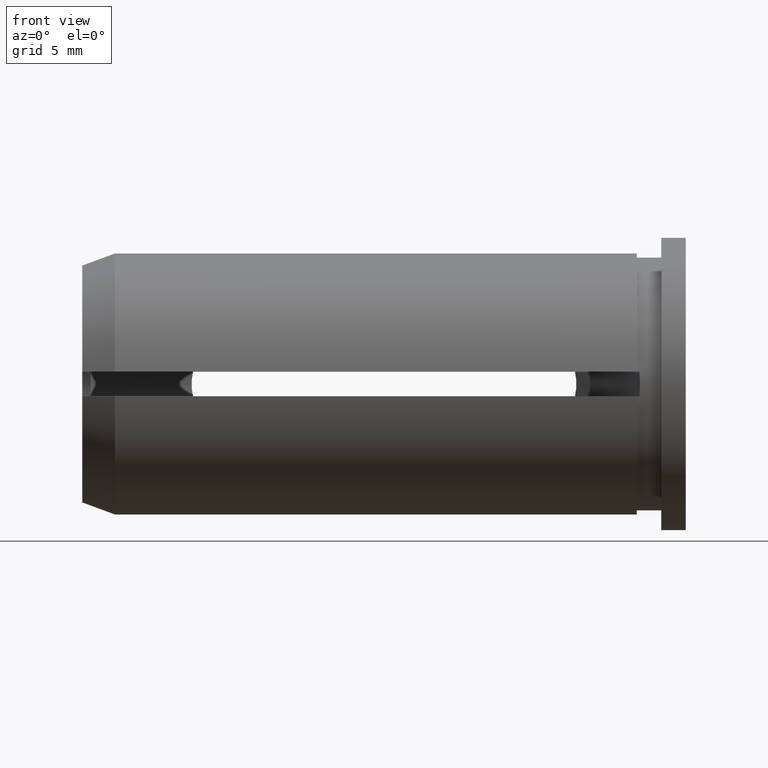
[diagram: clean part render]
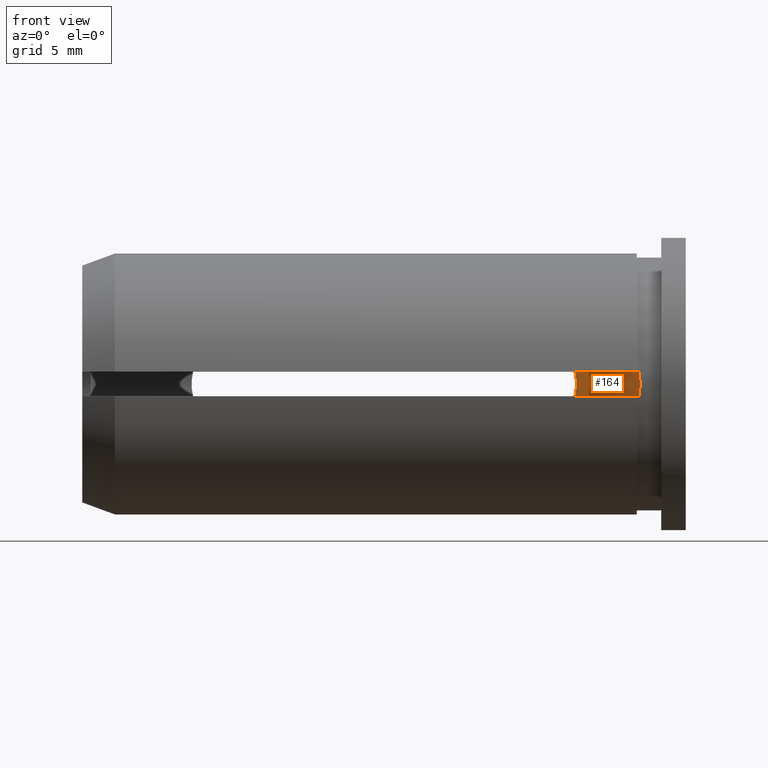
[diagram: same view with one face highlighted and labeled with its STEP entity id]
A machine part, front view. The second image highlights one B-rep face of the part: STEP entity #164.
In plain terms, the highlighted cylindrical surface (partial cylindrical patch) has radius 31.5 mm, axis along (-0, -0, 1).
Its self-contained STEP definition (entity closure, byte-faithful):
#16 = CARTESIAN_POINT ( 'NONE',  ( -2.831950108100726100, -7.713624310270756000, -0.7500000000000000000 ) ) ;
#25 = CARTESIAN_POINT ( 'NONE',  ( -2.831950108100726100, -7.713624310270756000, 0.7500000000000000000 ) ) ;
#39 = CARTESIAN_POINT ( 'NONE',  ( -6.701176655096183800, -3.999865424803159500, -0.2562650930468137700 ) ) ;
#40 = AXIS2_PLACEMENT_3D ( 'NONE', #60, #246, #297 ) ;
#42 = CARTESIAN_POINT ( 'NONE',  ( -6.730935861621550700, -3.975733101721137300, -0.5054832203984677100 ) ) ;
#43 = ORIENTED_EDGE ( 'NONE', *, *, #184, .F. ) ;
#53 = AXIS2_PLACEMENT_3D ( 'NONE', #460, #511, #66 ) ;
#60 = CARTESIAN_POINT ( 'NONE',  ( -26.49999999999999600, -28.50000000000000000, 0.7500000000000000000 ) ) ;
#66 = DIRECTION ( 'NONE',  ( -1.000000000000000000, 0.0000000000000000000, 0.0000000000000000000 ) ) ;
#71 = CYLINDRICAL_SURFACE ( 'NONE', #283, 31.50000000000000000 ) ;
#115 = FACE_OUTER_BOUND ( 'NONE', #515, .T. ) ;
#119 = CIRCLE ( 'NONE', #40, 31.50000000000000000 ) ;
#145 = CARTESIAN_POINT ( 'NONE',  ( -6.789119008821558100, -3.929058411375429200, 0.7500000000000000000 ) ) ;
#164 = ADVANCED_FACE ( 'NONE', ( #115 ), #71, .F. ) ;
#166 = CARTESIAN_POINT ( 'NONE',  ( -2.789253922157725700, -7.762239589537167600, -0.2500000000000003300 ) ) ;
#172 = CARTESIAN_POINT ( 'NONE',  ( -2.789253922157725300, -7.762239589537167600, 0.2500000000000000000 ) ) ;
#184 = EDGE_CURVE ( 'NONE', #472, #444, #195, .T. ) ;
#188 = CARTESIAN_POINT ( 'NONE',  ( -2.831950108100726100, -7.713624310270756000, 0.7500000000000000000 ) ) ;
#191 = VERTEX_POINT ( 'NONE', #257 ) ;
#195 = CIRCLE ( 'NONE', #53, 31.50000000000000000 ) ;
#209 = DIRECTION ( 'NONE',  ( 1.000000000000000000, 0.0000000000000000000, 0.0000000000000000000 ) ) ;
#240 = CARTESIAN_POINT ( 'NONE',  ( -6.700844974766410700, -4.000133462971036600, 0.2520466085258714100 ) ) ;
#246 = DIRECTION ( 'NONE',  ( 0.0000000000000000000, 0.0000000000000000000, 1.000000000000000000 ) ) ;
#257 = CARTESIAN_POINT ( 'NONE',  ( -6.789119008821558100, -3.929058411375429200, 0.7500000000000000000 ) ) ;
#278 = EDGE_CURVE ( 'NONE', #501, #472, #572, .T. ) ;
#283 = AXIS2_PLACEMENT_3D ( 'NONE', #306, #613, #209 ) ;
#284 = CARTESIAN_POINT ( 'NONE',  ( -6.789119008821558100, -3.929058411375429200, -0.7500000000000000000 ) ) ;
#287 = CARTESIAN_POINT ( 'NONE',  ( -6.789119008821558100, -3.929058411375429200, -0.7500000000000000000 ) ) ;
#297 = DIRECTION ( 'NONE',  ( -1.000000000000000000, 0.0000000000000000000, 0.0000000000000000000 ) ) ;
#306 = CARTESIAN_POINT ( 'NONE',  ( -26.49999999999999600, -28.50000000000000000, -0.7500000000000000000 ) ) ;
#337 = CARTESIAN_POINT ( 'NONE',  ( -2.831950108100726100, -7.713624310270756000, -0.7500000000000000000 ) ) ;
#375 = ORIENTED_EDGE ( 'NONE', *, *, #567, .F. ) ;
#390 = CARTESIAN_POINT ( 'NONE',  ( -6.730919675612485200, -3.975746086184807300, 0.5054151981101997500 ) ) ;
#427 = B_SPLINE_CURVE_WITH_KNOTS ( 'NONE', 3,
 ( #287, #42, #39, #240, #390, #145 ),
 .UNSPECIFIED., .F., .F.,
 ( 4, 2, 4 ),
 ( 1.084202172485504400E-019, 0.0007562263913862878900, 0.001512452782772575600 ),
 .UNSPECIFIED. ) ;
#444 = VERTEX_POINT ( 'NONE', #284 ) ;
#446 = ORIENTED_EDGE ( 'NONE', *, *, #585, .T. ) ;
#460 = CARTESIAN_POINT ( 'NONE',  ( -26.49999999999999600, -28.50000000000000000, -0.7500000000000000000 ) ) ;
#472 = VERTEX_POINT ( 'NONE', #337 ) ;
#501 = VERTEX_POINT ( 'NONE', #188 ) ;
#511 = DIRECTION ( 'NONE',  ( 0.0000000000000000000, 0.0000000000000000000, 1.000000000000000000 ) ) ;
#515 = EDGE_LOOP ( 'NONE', ( #43, #540, #446, #375 ) ) ;
#540 = ORIENTED_EDGE ( 'NONE', *, *, #278, .F. ) ;
#567 = EDGE_CURVE ( 'NONE', #444, #191, #427, .T. ) ;
#572 = B_SPLINE_CURVE_WITH_KNOTS ( 'NONE', 3,
 ( #25, #172, #166, #16 ),
 .UNSPECIFIED., .F., .F.,
 ( 4, 4 ),
 ( 0.0000000000000000000, 0.001500000000000000000 ),
 .UNSPECIFIED. ) ;
#585 = EDGE_CURVE ( 'NONE', #501, #191, #119, .T. ) ;
#613 = DIRECTION ( 'NONE',  ( -0.0000000000000000000, -0.0000000000000000000, 1.000000000000000000 ) ) ;